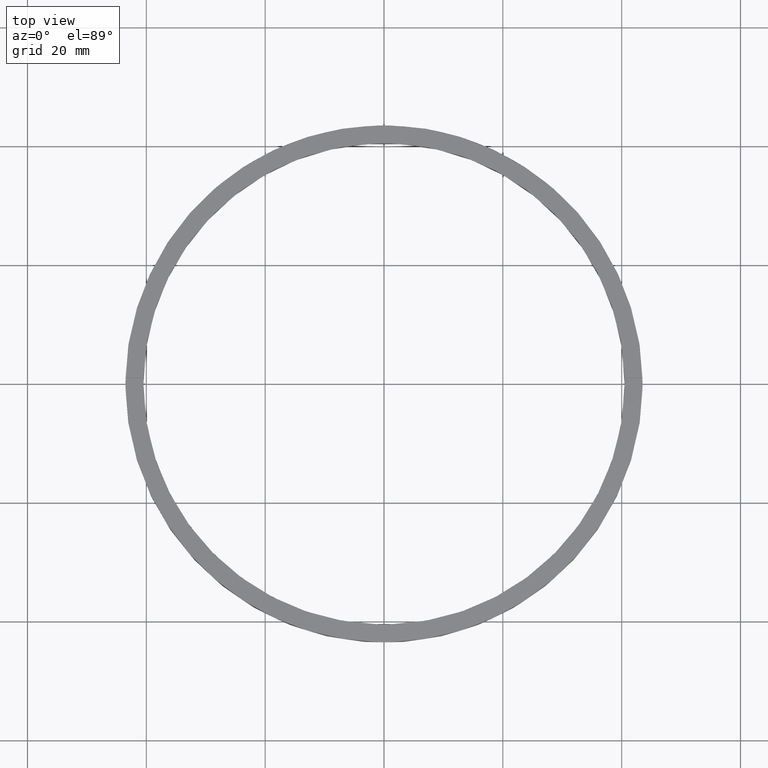
[diagram: clean part render]
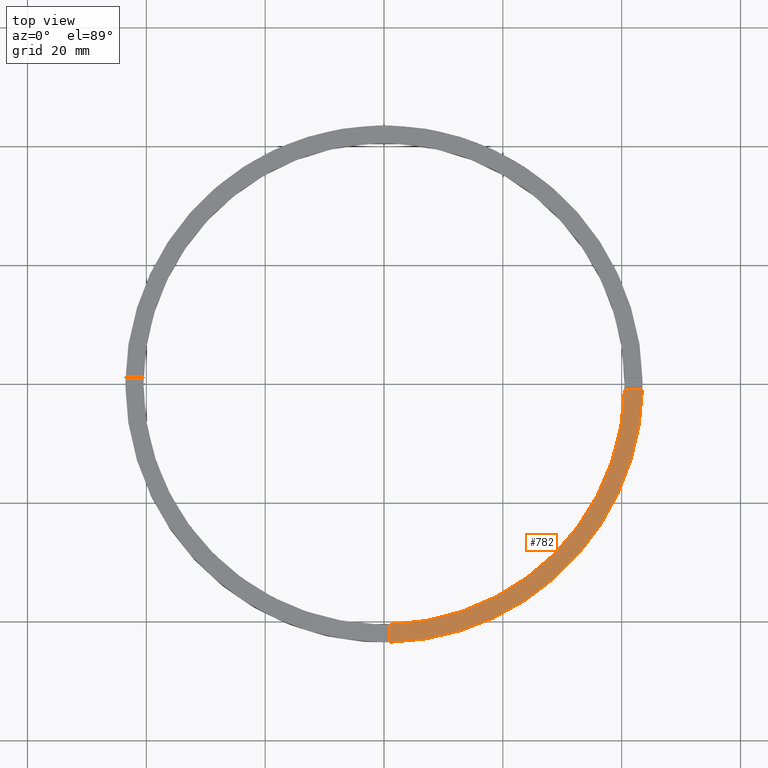
[diagram: same view with one face highlighted and labeled with its STEP entity id]
A machine part, top view. The second image highlights one B-rep face of the part: STEP entity #782.
In plain terms, the highlighted planar face has unit normal (0, 0, 1).
Its self-contained STEP definition (entity closure, byte-faithful):
#6 = VERTEX_POINT ( 'NONE', #143 ) ;
#25 = EDGE_CURVE ( 'NONE', #331, #570, #468, .T. ) ;
#44 = LINE ( 'NONE', #294, #309 ) ;
#47 = LINE ( 'NONE', #614, #303 ) ;
#96 = AXIS2_PLACEMENT_3D ( 'NONE', #139, #698, #646 ) ;
#131 = VERTEX_POINT ( 'NONE', #543 ) ;
#139 = CARTESIAN_POINT ( 'NONE',  ( 0.000000000000000000, 0.000000000000000000, 4.000000000000000000 ) ) ;
#143 = CARTESIAN_POINT ( 'NONE',  ( 0.9999999999998412381, -40.48765243873742037, 4.000000000000000000 ) ) ;
#281 = AXIS2_PLACEMENT_3D ( 'NONE', #352, #520, #762 ) ;
#294 = CARTESIAN_POINT ( 'NONE',  ( 33.49999999999998579, -1.000000000000156986, 4.000000000000000000 ) ) ;
#303 = VECTOR ( 'NONE', #647, 1000.000000000000000 ) ;
#309 = VECTOR ( 'NONE', #692, 1000.000000000000000 ) ;
#326 = ORIENTED_EDGE ( 'NONE', *, *, #426, .F. ) ;
#331 = VERTEX_POINT ( 'NONE', #718 ) ;
#352 = CARTESIAN_POINT ( 'NONE',  ( 0.000000000000000000, 0.000000000000000000, 4.000000000000000000 ) ) ;
#415 = EDGE_CURVE ( 'NONE', #331, #6, #47, .T. ) ;
#426 = EDGE_CURVE ( 'NONE', #131, #570, #44, .T. ) ;
#439 = PLANE ( 'NONE',  #281 ) ;
#468 = CIRCLE ( 'NONE', #485, 43.50000000000000000 ) ;
#480 = EDGE_LOOP ( 'NONE', ( #326, #536, #743, #774 ) ) ;
#485 = AXIS2_PLACEMENT_3D ( 'NONE', #734, #597, #639 ) ;
#520 = DIRECTION ( 'NONE',  ( 0.000000000000000000, 0.000000000000000000, 1.000000000000000000 ) ) ;
#536 = ORIENTED_EDGE ( 'NONE', *, *, #712, .F. ) ;
#543 = CARTESIAN_POINT ( 'NONE',  ( 40.48765243873741326, -1.000000000000156541, 4.000000000000000000 ) ) ;
#570 = VERTEX_POINT ( 'NONE', #656 ) ;
#580 = CIRCLE ( 'NONE', #96, 40.50000000000000000 ) ;
#585 = FACE_OUTER_BOUND ( 'NONE', #480, .T. ) ;
#597 = DIRECTION ( 'NONE',  ( 0.000000000000000000, 0.000000000000000000, 1.000000000000000000 ) ) ;
#614 = CARTESIAN_POINT ( 'NONE',  ( 0.9999999999998404610, -33.50000000000017764, 4.000000000000000000 ) ) ;
#639 = DIRECTION ( 'NONE',  ( 1.000000000000000000, 0.000000000000000000, 0.000000000000000000 ) ) ;
#646 = DIRECTION ( 'NONE',  ( 1.000000000000000000, 0.000000000000000000, 0.000000000000000000 ) ) ;
#647 = DIRECTION ( 'NONE',  ( -1.301042606982605074E-16, 1.000000000000000000, -0.000000000000000000 ) ) ;
#656 = CARTESIAN_POINT ( 'NONE',  ( 43.48850422812905947, -1.000000000000156319, 4.000000000000000000 ) ) ;
#692 = DIRECTION ( 'NONE',  ( 1.000000000000000000, 6.505213034913025371E-17, 0.000000000000000000 ) ) ;
#698 = DIRECTION ( 'NONE',  ( 0.000000000000000000, 0.000000000000000000, 1.000000000000000000 ) ) ;
#712 = EDGE_CURVE ( 'NONE', #6, #131, #580, .T. ) ;
#718 = CARTESIAN_POINT ( 'NONE',  ( 0.9999999999998416822, -43.48850422812906658, 4.000000000000000000 ) ) ;
#734 = CARTESIAN_POINT ( 'NONE',  ( 0.000000000000000000, 0.000000000000000000, 4.000000000000000000 ) ) ;
#743 = ORIENTED_EDGE ( 'NONE', *, *, #415, .F. ) ;
#762 = DIRECTION ( 'NONE',  ( 1.000000000000000000, 0.000000000000000000, -0.000000000000000000 ) ) ;
#774 = ORIENTED_EDGE ( 'NONE', *, *, #25, .T. ) ;
#782 = ADVANCED_FACE ( 'NONE', ( #585 ), #439, .T. ) ;